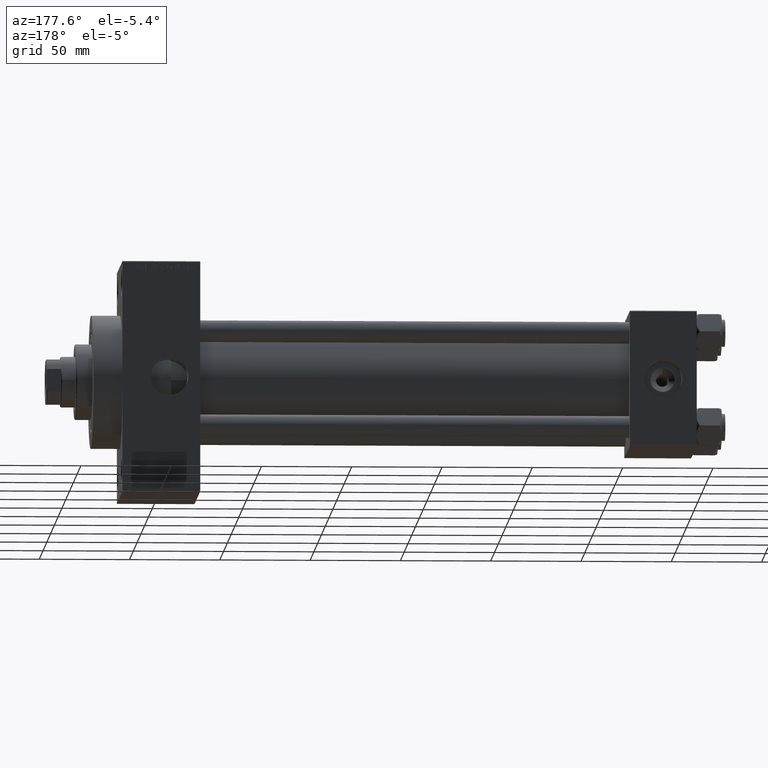
[diagram: clean part render]
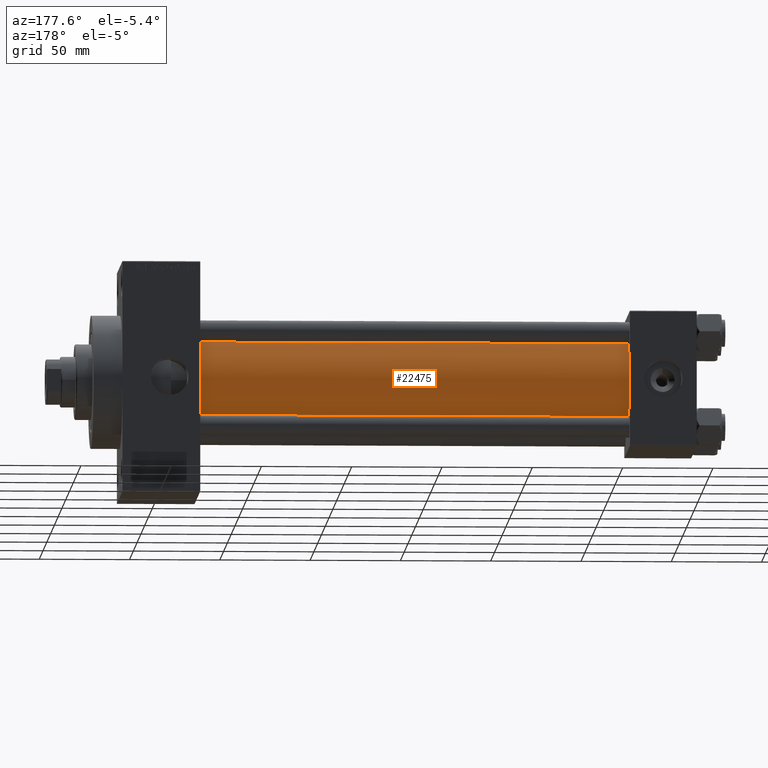
[diagram: same view with one face highlighted and labeled with its STEP entity id]
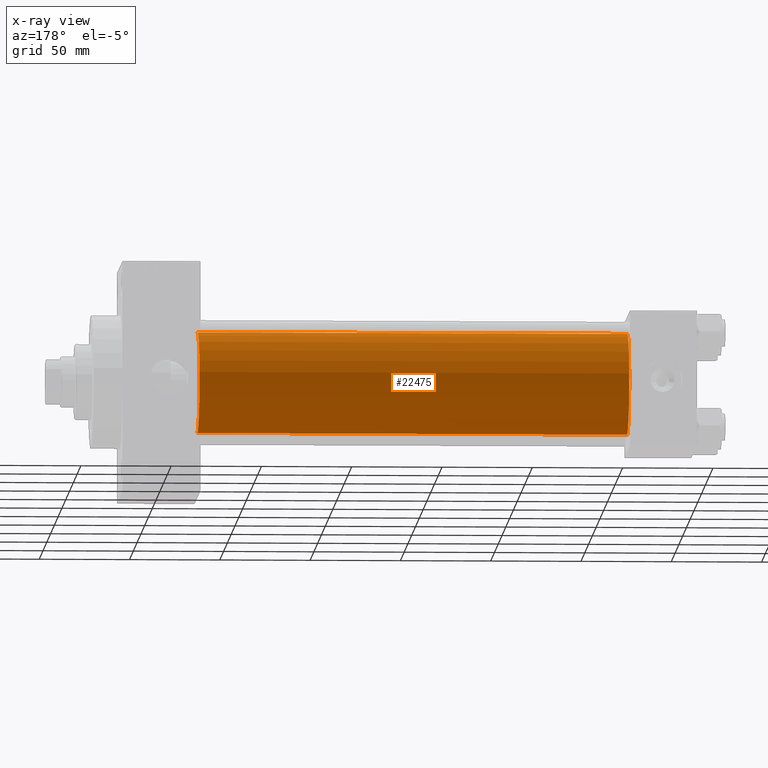
[diagram: x-ray of the same camera — body ghosted, the highlighted face saturated]
A machine part, auxiliary view. The second image highlights one B-rep face of the part: STEP entity #22475.
The next image is the same camera in x-ray: the body ghosted, the highlighted face saturated — about 0% of this face is hidden behind the body in this view.
In plain terms, the highlighted cylindrical surface (partial cylindrical patch) has radius 28 mm, axis along (-1, -0, -0).
Its self-contained STEP definition (entity closure, byte-faithful):
#1715 = CARTESIAN_POINT ( 'NONE',  ( 274.9999999999999432, -2.602085213965210642E-15, 28.00000000000000000 ) ) ;
#6109 = DIRECTION ( 'NONE',  ( 0.000000000000000000, 0.000000000000000000, 1.000000000000000000 ) ) ;
#7054 = EDGE_CURVE ( 'NONE', #31821, #33223, #47402, .T. ) ;
#8294 = EDGE_CURVE ( 'NONE', #27385, #31821, #29247, .T. ) ;
#8462 = CYLINDRICAL_SURFACE ( 'NONE', #14477, 28.00000000000000000 ) ;
#9673 = ORIENTED_EDGE ( 'NONE', *, *, #42038, .F. ) ;
#10156 = DIRECTION ( 'NONE',  ( -1.000000000000000000, -0.000000000000000000, -0.000000000000000000 ) ) ;
#11370 = EDGE_LOOP ( 'NONE', ( #13964, #30435, #21204, #9673 ) ) ;
#13964 = ORIENTED_EDGE ( 'NONE', *, *, #47494, .F. ) ;
#14253 = VECTOR ( 'NONE', #10156, 1000.000000000000000 ) ;
#14477 = AXIS2_PLACEMENT_3D ( 'NONE', #16396, #27922, #28426 ) ;
#16396 = CARTESIAN_POINT ( 'NONE',  ( 274.9999999999999432, -2.602085213965210642E-15, 0.000000000000000000 ) ) ;
#18393 = CARTESIAN_POINT ( 'NONE',  ( 37.00000000000000711, -2.602085213965210642E-15, 0.000000000000000000 ) ) ;
#19728 = FACE_OUTER_BOUND ( 'NONE', #11370, .T. ) ;
#21204 = ORIENTED_EDGE ( 'NONE', *, *, #7054, .T. ) ;
#21413 = CARTESIAN_POINT ( 'NONE',  ( 274.9999999999999432, 8.269258236473784371E-16, -28.00000000000000000 ) ) ;
#22475 = ADVANCED_FACE ( 'NONE', ( #19728 ), #8462, .T. ) ;
#22536 = CARTESIAN_POINT ( 'NONE',  ( 274.9999999999999432, -2.602085213965210642E-15, 0.000000000000000000 ) ) ;
#22644 = CARTESIAN_POINT ( 'NONE',  ( 37.00000000000000711, 8.269258236473784371E-16, -28.00000000000000000 ) ) ;
#23204 = CIRCLE ( 'NONE', #40396, 28.00000000000000000 ) ;
#26886 = DIRECTION ( 'NONE',  ( 1.000000000000000000, 0.000000000000000000, 0.000000000000000000 ) ) ;
#27385 = VERTEX_POINT ( 'NONE', #21413 ) ;
#27922 = DIRECTION ( 'NONE',  ( -1.000000000000000000, -0.000000000000000000, -0.000000000000000000 ) ) ;
#28426 = DIRECTION ( 'NONE',  ( 0.000000000000000000, 0.000000000000000000, 1.000000000000000000 ) ) ;
#29247 = LINE ( 'NONE', #41291, #31093 ) ;
#29502 = DIRECTION ( 'NONE',  ( -1.000000000000000000, -0.000000000000000000, -0.000000000000000000 ) ) ;
#29663 = DIRECTION ( 'NONE',  ( 1.000000000000000000, -0.000000000000000000, 0.000000000000000000 ) ) ;
#30435 = ORIENTED_EDGE ( 'NONE', *, *, #8294, .T. ) ;
#31059 = AXIS2_PLACEMENT_3D ( 'NONE', #18393, #29663, #6109 ) ;
#31093 = VECTOR ( 'NONE', #29502, 1000.000000000000000 ) ;
#31821 = VERTEX_POINT ( 'NONE', #22644 ) ;
#33223 = VERTEX_POINT ( 'NONE', #35451 ) ;
#33732 = LINE ( 'NONE', #1715, #14253 ) ;
#34334 = DIRECTION ( 'NONE',  ( 0.000000000000000000, 0.000000000000000000, -1.000000000000000000 ) ) ;
#35451 = CARTESIAN_POINT ( 'NONE',  ( 37.00000000000000711, -2.602085213965210642E-15, 28.00000000000000000 ) ) ;
#36599 = VERTEX_POINT ( 'NONE', #40739 ) ;
#40396 = AXIS2_PLACEMENT_3D ( 'NONE', #22536, #26886, #34334 ) ;
#40739 = CARTESIAN_POINT ( 'NONE',  ( 274.9999999999999432, -2.602085213965210642E-15, 28.00000000000000000 ) ) ;
#41291 = CARTESIAN_POINT ( 'NONE',  ( 274.9999999999999432, 8.269258236473784371E-16, -28.00000000000000000 ) ) ;
#42038 = EDGE_CURVE ( 'NONE', #36599, #33223, #33732, .T. ) ;
#47402 = CIRCLE ( 'NONE', #31059, 28.00000000000000000 ) ;
#47494 = EDGE_CURVE ( 'NONE', #27385, #36599, #23204, .T. ) ;